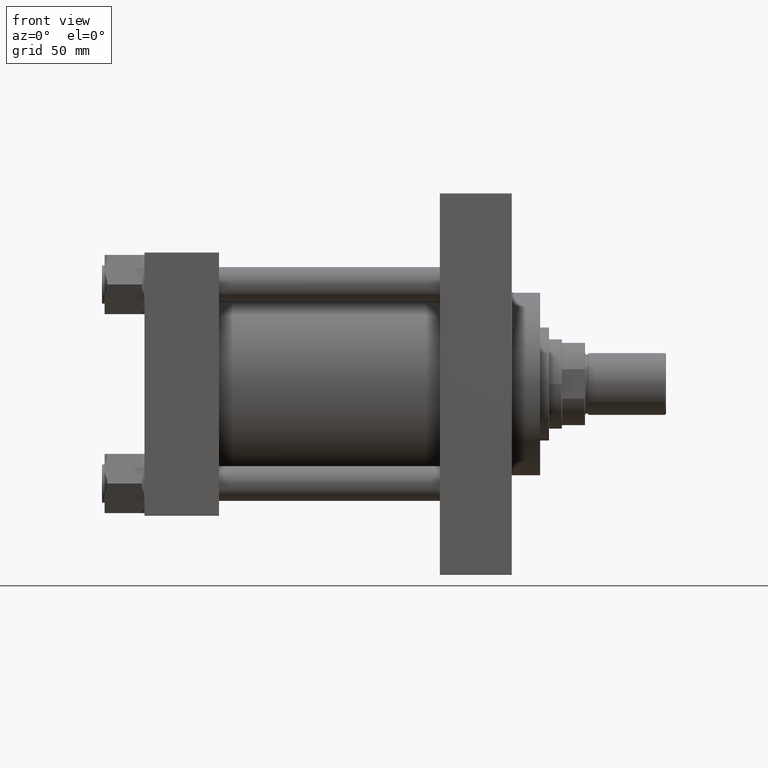
[diagram: clean part render]
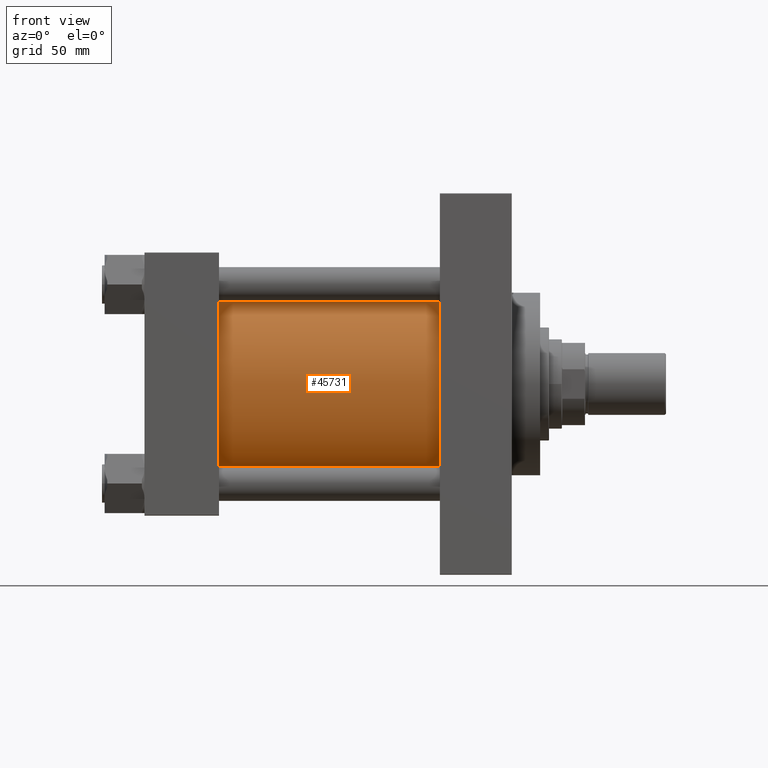
[diagram: same view with one face highlighted and labeled with its STEP entity id]
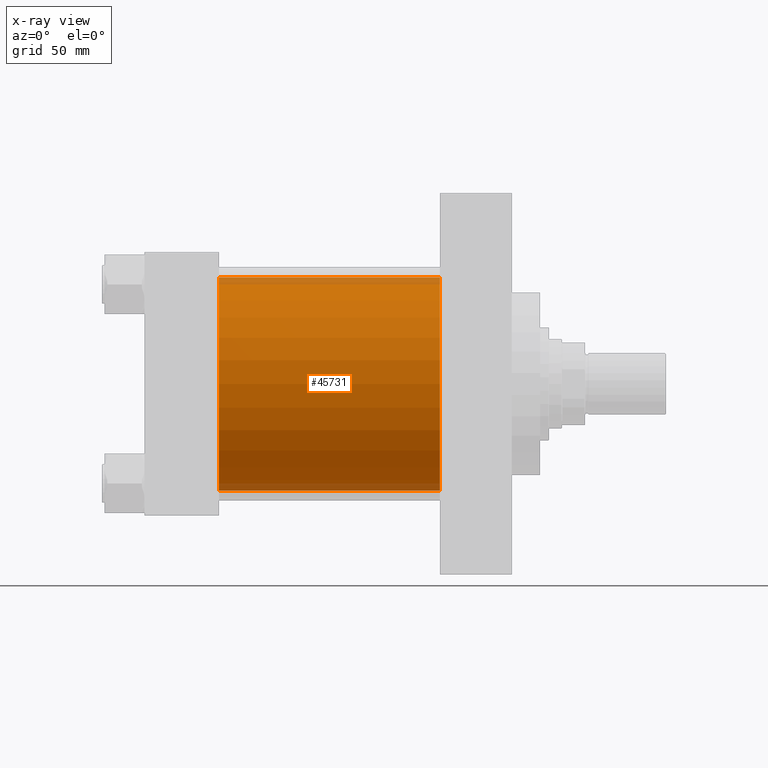
[diagram: x-ray of the same camera — body ghosted, the highlighted face saturated]
A machine part, front view. The second image highlights one B-rep face of the part: STEP entity #45731.
The next image is the same camera in x-ray: the body ghosted, the highlighted face saturated — about 7% of this face is hidden behind the body in this view.
In plain terms, the highlighted cylindrical surface (partial cylindrical patch) has radius 83 mm, axis along (-1, -0, -0).
Its self-contained STEP definition (entity closure, byte-faithful):
#194 = DIRECTION ( 'NONE',  ( -1.000000000000000000, -0.000000000000000000, -0.000000000000000000 ) ) ;
#1122 = CARTESIAN_POINT ( 'NONE',  ( 229.9999999999999716, 7.562483218957820855E-15, -83.00000000000000000 ) ) ;
#1282 = CIRCLE ( 'NONE', #29290, 83.00000000000000000 ) ;
#6569 = CARTESIAN_POINT ( 'NONE',  ( 229.9999999999999716, -2.602085213965210642E-15, 83.00000000000000000 ) ) ;
#10263 = DIRECTION ( 'NONE',  ( 0.000000000000000000, 0.000000000000000000, -1.000000000000000000 ) ) ;
#12349 = DIRECTION ( 'NONE',  ( -1.000000000000000000, -0.000000000000000000, -0.000000000000000000 ) ) ;
#12368 = AXIS2_PLACEMENT_3D ( 'NONE', #39251, #24622, #10263 ) ;
#15448 = CIRCLE ( 'NONE', #12368, 83.00000000000000000 ) ;
#18955 = EDGE_CURVE ( 'NONE', #21674, #41476, #15448, .T. ) ;
#19725 = CARTESIAN_POINT ( 'NONE',  ( 57.99999999999999289, -2.602085213965210642E-15, 83.00000000000000000 ) ) ;
#21121 = AXIS2_PLACEMENT_3D ( 'NONE', #44994, #194, #26681 ) ;
#21674 = VERTEX_POINT ( 'NONE', #6569 ) ;
#22148 = ORIENTED_EDGE ( 'NONE', *, *, #18955, .F. ) ;
#23284 = ORIENTED_EDGE ( 'NONE', *, *, #38154, .T. ) ;
#23365 = VECTOR ( 'NONE', #12349, 1000.000000000000000 ) ;
#24622 = DIRECTION ( 'NONE',  ( 1.000000000000000000, 0.000000000000000000, 0.000000000000000000 ) ) ;
#26681 = DIRECTION ( 'NONE',  ( 0.000000000000000000, 0.000000000000000000, 1.000000000000000000 ) ) ;
#27083 = VECTOR ( 'NONE', #42715, 1000.000000000000000 ) ;
#27416 = LINE ( 'NONE', #42281, #23365 ) ;
#29290 = AXIS2_PLACEMENT_3D ( 'NONE', #30679, #39229, #30924 ) ;
#30679 = CARTESIAN_POINT ( 'NONE',  ( 57.99999999999999289, -2.602085213965210642E-15, 0.000000000000000000 ) ) ;
#30702 = EDGE_CURVE ( 'NONE', #37657, #30742, #1282, .T. ) ;
#30742 = VERTEX_POINT ( 'NONE', #38984 ) ;
#30924 = DIRECTION ( 'NONE',  ( 0.000000000000000000, 0.000000000000000000, 1.000000000000000000 ) ) ;
#31664 = EDGE_LOOP ( 'NONE', ( #36839, #22148, #23284, #37507 ) ) ;
#33528 = CYLINDRICAL_SURFACE ( 'NONE', #21121, 83.00000000000000000 ) ;
#36839 = ORIENTED_EDGE ( 'NONE', *, *, #43596, .F. ) ;
#37507 = ORIENTED_EDGE ( 'NONE', *, *, #30702, .T. ) ;
#37657 = VERTEX_POINT ( 'NONE', #19725 ) ;
#38154 = EDGE_CURVE ( 'NONE', #21674, #37657, #46859, .T. ) ;
#38984 = CARTESIAN_POINT ( 'NONE',  ( 57.99999999999999289, 7.562483218957820855E-15, -83.00000000000000000 ) ) ;
#39229 = DIRECTION ( 'NONE',  ( 1.000000000000000000, -0.000000000000000000, -0.000000000000000000 ) ) ;
#39251 = CARTESIAN_POINT ( 'NONE',  ( 229.9999999999999716, -2.602085213965210642E-15, 0.000000000000000000 ) ) ;
#39308 = CARTESIAN_POINT ( 'NONE',  ( 229.9999999999999716, -2.602085213965210642E-15, 83.00000000000000000 ) ) ;
#41476 = VERTEX_POINT ( 'NONE', #1122 ) ;
#42281 = CARTESIAN_POINT ( 'NONE',  ( 229.9999999999999716, 7.562483218957820855E-15, -83.00000000000000000 ) ) ;
#42715 = DIRECTION ( 'NONE',  ( -1.000000000000000000, -0.000000000000000000, -0.000000000000000000 ) ) ;
#43596 = EDGE_CURVE ( 'NONE', #41476, #30742, #27416, .T. ) ;
#44994 = CARTESIAN_POINT ( 'NONE',  ( 229.9999999999999716, -2.602085213965210642E-15, 0.000000000000000000 ) ) ;
#45222 = FACE_OUTER_BOUND ( 'NONE', #31664, .T. ) ;
#45731 = ADVANCED_FACE ( 'NONE', ( #45222 ), #33528, .T. ) ;
#46859 = LINE ( 'NONE', #39308, #27083 ) ;